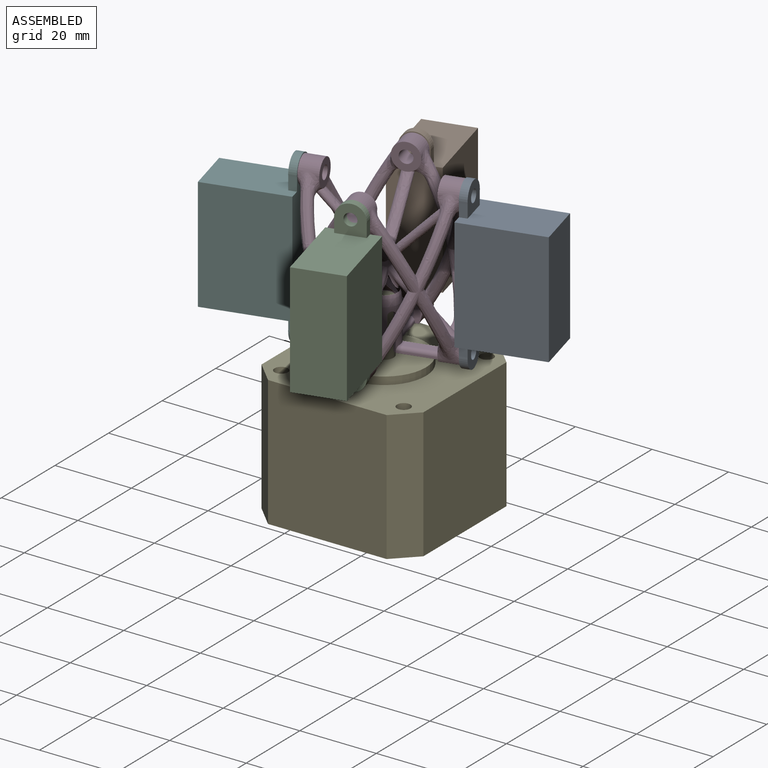
[diagram: assembled view]
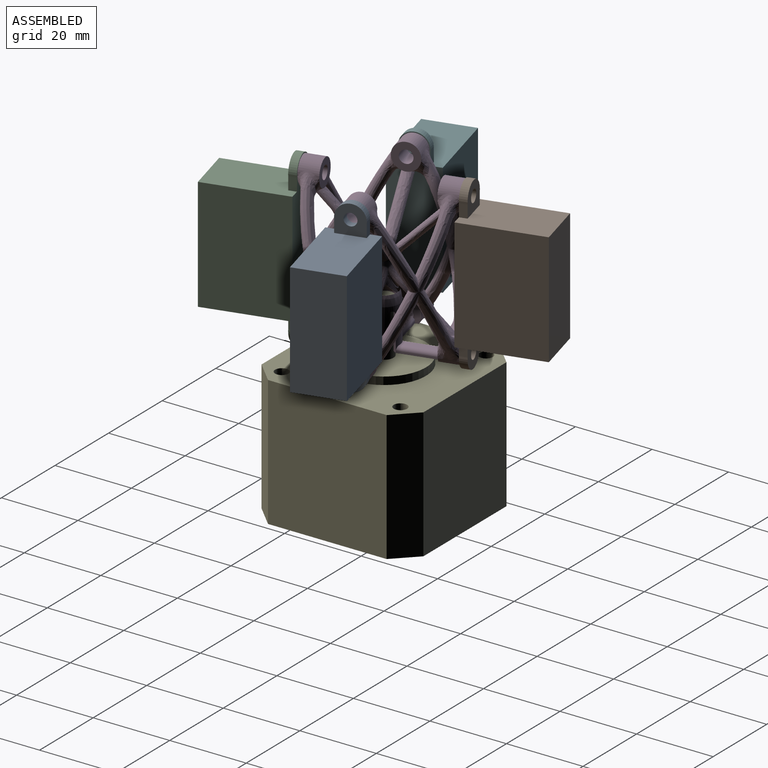
[diagram: assembled view, second angle]
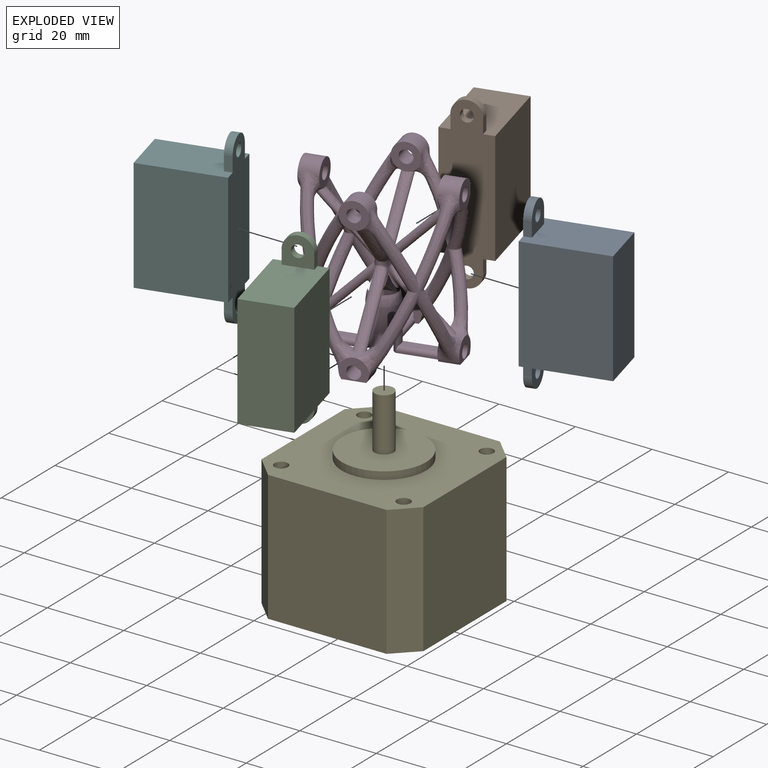
[diagram: exploded view]
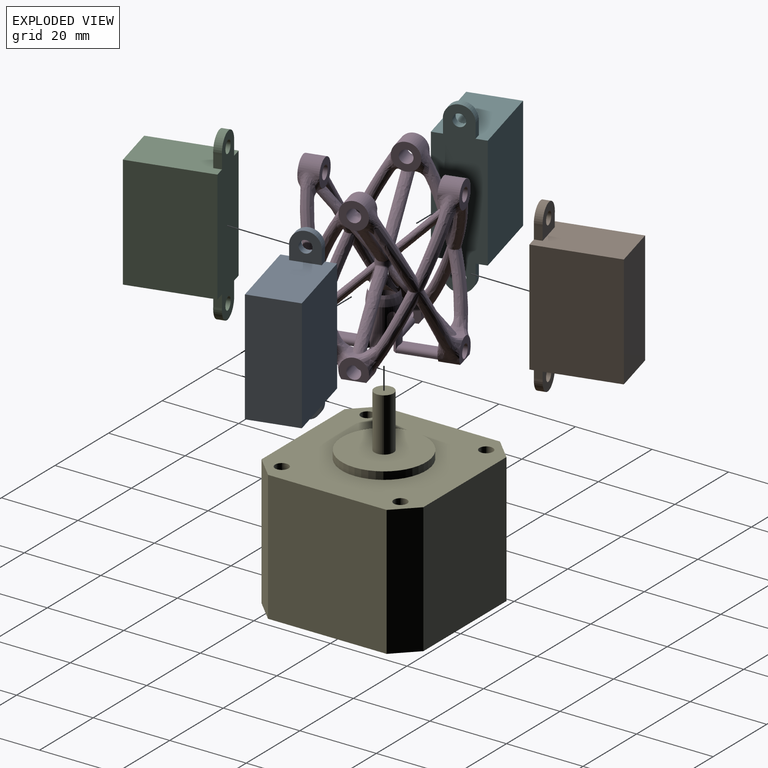
[diagram: exploded view, second angle]
ASSEMBLY  parts=6 mates=5
PART A: 16 faces, bbox 44.5x21.6x13 mm
  f0: plane 21.6x13mm, normal (1,0,0), area 265.9mm2, adj f2,f3,f4,f5,f12,f14,f15
  f1: plane 21.6x13mm, normal (-1,0,0), area 265.9mm2, adj f2,f3,f4,f5,f8,f9,f10
  f2: plane 29.5x21.6mm, normal (0,0,-1), area 637.2mm2, adj f0,f1,f4,f5
  f3: plane 29.5x21.6mm, normal (0,0,1), area 637.2mm2, adj f0,f1,f4,f5
  f4: plane 29.5x13mm, normal (0,-1,0), area 383.5mm2, adj f0,f1,f2,f3
  f5: plane 44.5x13mm, normal (0,1,0), area 467.5mm2, adj f0,f1,f2,f3,f6,f7,f9,f10
  f6: cylinder r=3.75mm len=7.5mm, axis (0,1,0), area 25.4mm2, adj f5,f8,f9,f10
  f7: cylinder r=1.6mm len=3.2mm, axis (0,1,0), area 20.1mm2, adj f5,f8
  f8: plane 7.5x7.5mm, normal (0,-1,0), area 42mm2, adj f1,f6,f7,f9,f10
  f9: plane 3.3x2mm, normal (0,0,-1), area 6.6mm2, adj f1,f5,f6,f8
  f10: plane 3.3x2mm, normal (0,0,1), area 6.6mm2, adj f1,f5,f6,f8
  f11: cylinder r=3.75mm len=7.5mm, axis (0,1,0), area 25.4mm2, adj f5,f12,f14,f15
  f12: plane 3.3x2mm, normal (0,0,1), area 6.6mm2, adj f0,f5,f11,f15
  f13: cylinder r=1.6mm len=3.2mm, axis (0,1,0), area 20.1mm2, adj f5,f15
  f14: plane 3.3x2mm, normal (0,0,-1), area 6.6mm2, adj f0,f5,f11,f15
  f15: plane 7.5x7.5mm, normal (0,-1,0), area 42mm2, adj f0,f11,f12,f13,f14
PART B: same geometry as A
PART C: same geometry as A
PART D: 319 faces, bbox 91.7x91.7x44.1 mm
  f0: cylinder r=4mm len=11.18mm, axis (0,0,-1), area 178.8mm2, adj f1,f4,f284,f285,f286,f287,f288,f289
  f1: plane 9x1.15mm, normal (0,-1,0), area 10.4mm2, adj f0,f2,f288,f317
  f2: cylinder r=2.9mm len=12.1mm, axis (0,0,-1), area 142.9mm2, adj f1,f3,f288,f289,f290,f291,f297,f298
  f3: cone r=2.9mm half-angle=45deg, axis (0,0,-1), area 37.4mm2, adj f2
  f4: plane 7.1x7.1mm, normal (-0.71,-0.71,0), area 5mm2, adj f0,f5,f284,f288
  f5: plane 6.32x5.77mm, normal (0.71,-0.71,0), area 20.6mm2, adj f4,f6,f273,f274,f275,f276,f277,f278
  f6: cylinder r=3.5mm len=3.94mm, axis (-0.71,0.71,0), area 5mm2, adj f5,f7,f272,f288
  f7: plane 6.1x5.55mm, normal (-0.71,0.71,0), area 23.4mm2, adj f6,f8,f266,f267,f268,f269,f270,f271
  f8: bspline ~4.59x2.49mm, area 5.4mm2, adj f7,f9,f10,f266
  f9: bspline ~4.05x4.01mm, area 6.8mm2, adj f8,f10,f280,f281
  f10: bspline ~26.59x15.83mm, area 50.2mm2, adj f8,f9,f11,f264,f265,f280
  f11: bspline ~22.61x13.64mm, area 50.2mm2, adj f10,f12,f260,f261,f262,f263
  f12: bspline ~16.12x8.88mm, area 29.7mm2, adj f11,f13,f259,f265
  f13: bspline ~14.07x8.53mm, area 37.1mm2, adj f12,f14,f256,f257,f258,f263
  f14: bspline ~15.18x9.13mm, area 41.2mm2, adj f13,f15,f252,f253,f254,f255
  f15: bspline ~16.95x9.29mm, area 31.6mm2, adj f14,f16,f250,f251
  f16: bspline ~16.95x9.29mm, area 31.6mm2, adj f15,f17,f248,f249
  f17: bspline ~15.18x9.13mm, area 41.2mm2, adj f16,f18,f244,f245,f246,f247
  f18: bspline ~14.07x8.53mm, area 37.1mm2, adj f17,f19,f264,f265,f267,f278
  f19: bspline ~6.07x5.61mm, area 12mm2, adj f18,f20,f243,f267,f268,f278
  f20: bspline ~6.12x5.75mm, area 12.1mm2, adj f19,f21,f243,f268,f269,f275
  f21: bspline ~14.07x8.53mm, area 37.1mm2, adj f20,f22,f241,f242,f269,f275
  f22: bspline ~15.18x9.13mm, area 41.2mm2, adj f21,f23,f237,f238,f239,f240
  f23: bspline ~16.95x9.29mm, area 31.6mm2, adj f22,f24,f235,f236
  f24: bspline ~16.95x9.29mm, area 31.6mm2, adj f23,f25,f233,f234
  f25: bspline ~15.18x9.13mm, area 41.2mm2, adj f24,f26,f229,f230,f231,f232
  f26: bspline ~14.07x8.53mm, area 37.1mm2, adj f25,f27,f225,f226,f227,f228
  f27: bspline ~16.12x8.88mm, area 29.7mm2, adj f26,f28,f224,f242
  f28: bspline ~26.59x15.83mm, area 50.2mm2, adj f27,f29,f30,f222,f223,f228
  f29: bspline ~26.59x15.83mm, area 50.2mm2, adj f28,f241,f242,f271,f272,f273
  f30: bspline ~4.59x2.49mm, area 5.4mm2, adj f28,f31,f221,f222
  f31: plane 6.1x5.55mm, normal (-0.71,-0.71,0), area 23.4mm2, adj f30,f32,f215,f216,f217,f218,f219,f220
  f32: cylinder r=1.7mm len=5.94mm, axis (0.71,0.71,0), area 53.2mm2, adj f31,f33,f214,f311,f313
  f33: plane 6.32x5.77mm, normal (0.71,0.71,0), area 20.6mm2, adj f32,f34,f210,f211,f212,f213,f215,f220
  f34: bspline ~3.51x2.3mm, area 2.3mm2, adj f33,f35,f36,f210
  f35: bspline ~4.58x4.51mm, area 6.8mm2, adj f34,f36,f219,f220
  f36: bspline ~26.59x15.83mm, area 50.2mm2, adj f34,f35,f37,f208,f209,f219
  f37: bspline ~26.59x15.83mm, area 50.2mm2, adj f36,f38,f204,f205,f206,f207
  f38: bspline ~22.59x13.45mm, area 32.9mm2, adj f37,f39,f202,f203
  f39: bspline ~25.82x15.2mm, area 34.5mm2, adj f38,f40,f200,f201
  f40: bspline ~26.59x15.83mm, area 50.7mm2, adj f39,f41,f196,f197,f198,f199
  f41: bspline ~22.61x13.64mm, area 50.7mm2, adj f40,f42,f192,f193,f194,f195
  f42: bspline ~25.82x15.2mm, area 34.5mm2, adj f41,f43,f191,f209
  f43: bspline ~15.18x9.13mm, area 41.2mm2, adj f42,f44,f47,f189,f190,f195
  f44: bspline ~14.07x8.53mm, area 37.1mm2, adj f43,f45,f208,f209,f211,f217
  f45: bspline ~6.12x5.75mm, area 12.1mm2, adj f44,f46,f211,f216,f217,f226
  f46: bspline ~17.84x12.63mm, area 141mm2, adj f45,f211,f212,f213,f225,f226
  f47: bspline ~3.33x2.98mm, area 3.2mm2, adj f43,f48,f49,f189
  f48: bspline ~4.97x3.13mm, area 6.7mm2, adj f47,f49,f194,f195
  f49: plane 7.43x5.38mm, normal (0.71,0.71,0), area 29.4mm2, adj f47,f48,f50,f185,f186,f187,f188,f194
  f50: cylinder r=3.5mm len=8.48mm, axis (-0.71,-0.71,0), area 46.2mm2, adj f49,f51,f54,f193
  f51: bspline ~4.19x4.18mm, area 6.4mm2, adj f50,f52,f185,f234
  f52: bspline ~3.44x2.04mm, area 3.7mm2, adj f51,f53,f54,f234
  f53: bspline ~3.43x3.32mm, area 5.3mm2, adj f52,f54,f229,f230
  f54: plane 7.38x5.33mm, normal (-0.71,-0.71,0), area 29.4mm2, adj f50,f52,f53,f55,f188,f190,f191,f192
  f55: cylinder r=3.5mm len=2.9mm, axis (-0.71,-0.71,0), area 3.2mm2, adj f54,f56,f189,f231
  f56: bspline ~18.06x12.78mm, area 154.2mm2, adj f55,f57,f165,f166,f167,f168,f184,f186
  f57: bspline ~18.06x12.78mm, area 154.2mm2, adj f56,f58,f158,f159,f160,f161,f162,f163
  f58: bspline ~18.06x12.78mm, area 154.2mm2, adj f57,f59,f151,f152,f153,f154,f157,f158
  f59: cylinder r=3.5mm len=0.79mm, axis (0.71,0.71,0), area 0.1mm2, adj f58,f60,f151
  f60: plane 7.43x5.38mm, normal (-0.71,-0.71,0), area 29.4mm2, adj f59,f61,f146,f147,f148,f149,f150,f157
  f61: bspline ~2.41x1.99mm, area 0.4mm2, adj f60,f62,f250,f251
  f62: bspline ~4.14x4.13mm, area 6.4mm2, adj f61,f63,f146,f250
  f63: bspline ~3.44x2.04mm, area 3.7mm2, adj f62,f64,f145,f250
  f64: plane 7.38x5.33mm, normal (0.71,0.71,0), area 29.4mm2, adj f63,f65,f143,f144,f145,f146,f150,f152
  f65: bspline ~3.3x1.99mm, area 0.1mm2, adj f64,f66,f143,f151
  f66: bspline ~15.18x9.13mm, area 41.2mm2, adj f65,f67,f141,f142,f149,f151
  f67: bspline ~14.07x8.53mm, area 37.1mm2, adj f66,f68,f137,f138,f139,f140
  f68: bspline ~16.12x8.88mm, area 29.7mm2, adj f67,f69,f135,f136
  f69: bspline ~16.12x8.88mm, area 29.7mm2, adj f68,f70,f133,f134
  f70: bspline ~14.07x8.53mm, area 37.1mm2, adj f69,f71,f91,f130,f131,f132
  f71: bspline ~15.18x9.13mm, area 41.2mm2, adj f70,f72,f88,f89,f90,f160
  f72: bspline ~16.95x9.29mm, area 31.6mm2, adj f71,f73,f87,f142
  f73: bspline ~22.61x13.64mm, area 50.7mm2, adj f72,f74,f76,f85,f86,f90
  f74: bspline ~26.59x15.83mm, area 50.7mm2, adj f73,f75,f141,f142,f144,f147
  f75: bspline ~4.19x4.18mm, area 6.4mm2, adj f74,f144,f146,f147
  f76: bspline ~3.44x2.04mm, area 3.7mm2, adj f73,f77,f84,f85
  f77: plane 7.38x5.33mm, normal (0.71,-0.71,0), area 29.4mm2, adj f76,f78,f79,f83,f84,f89,f164,f199
  f78: bspline ~3.3x1.99mm, area 0.1mm2, adj f77,f163,f200,f201
  f79: cylinder r=3.5mm len=8.48mm, axis (0.71,-0.71,0), area 46.2mm2, adj f77,f80,f85,f198
  f80: plane 7.43x5.38mm, normal (-0.71,0.71,0), area 29.4mm2, adj f79,f81,f82,f83,f86,f87,f88,f161
  f81: bspline ~4.94x3.13mm, area 6.7mm2, adj f80,f82,f196,f197
  f82: bspline ~3.35x2.94mm, area 3.2mm2, adj f80,f81,f163,f201
  f83: cylinder r=1.7mm len=5.94mm, axis (0.71,-0.71,0), area 53.4mm2, adj f77,f80
  f84: bspline ~3.37x3.2mm, area 5.3mm2, adj f76,f77,f89,f90
  f85: bspline ~4.14x4.13mm, area 6.4mm2, adj f73,f76,f79,f86
  f86: bspline ~2.41x1.99mm, area 0.4mm2, adj f73,f80,f85,f87
  f87: bspline ~4.97x3.13mm, area 6.7mm2, adj f72,f80,f86,f88
  f88: bspline ~3.33x2.98mm, area 3.2mm2, adj f71,f80,f87,f160
  f89: bspline ~3.42x2.07mm, area 0.1mm2, adj f71,f77,f84,f160
  f90: bspline ~25.82x15.2mm, area 34.5mm2, adj f71,f73,f84,f91
  f91: bspline ~18.51x11.11mm, area 32.9mm2, adj f70,f90,f92,f134
  f92: bspline ~4.53x4.4mm, area 8mm2, adj f91,f93,f129,f130
  f93: bspline ~4.51x2.35mm, area 5.4mm2, adj f92,f94,f129,f134
  f94: bspline ~4.58x4.51mm, area 6.8mm2, adj f93,f95,f128,f134
  f95: cylinder r=3.5mm len=3.94mm, axis (0.71,-0.71,0), area 5mm2, adj f94,f96,f129,f306
  f96: plane 6.32x5.77mm, normal (-0.71,0.71,0), area 20.6mm2, adj f95,f97,f122,f123,f124,f125,f126,f128
  f97: cylinder r=3.5mm len=0.06mm, axis (0.71,-0.71,0), area 0mm2, adj f96,f98
  f98: bspline ~17.84x12.63mm, area 141mm2, adj f97,f99,f102,f122,f123,f131,f132
  f99: bspline ~6.07x5.61mm, area 12mm2, adj f98,f100,f101,f123,f131,f202
  f100: bspline ~4.58x2.74mm, area 0.7mm2, adj f99,f129,f202,f203
  f101: cylinder r=3.5mm len=1.46mm, axis (0.71,-0.71,0), area 0.4mm2, adj f99,f129,f131
  f102: bspline ~5.73x3.29mm, area 10.9mm2, adj f98,f103,f105,f106,f166
  f103: bspline ~5.73x3.29mm, area 9.3mm2, adj f102,f104,f105
  f104: bspline ~5.67x3.29mm, area 9.5mm2, adj f103,f105,f106,f166,f243
  f105: torus R=22mm, axis (0,0,-1), area 2542.3mm2, adj f102,f103,f104,f106,f318
  f106: bspline ~5.73x3.29mm, area 9.4mm2, adj f102,f104,f105,f107,f166
  f107: bspline ~17.84x12.63mm, area 141mm2, adj f106,f108,f121,f137,f138,f257,f258
  f108: cylinder r=3.5mm len=0.06mm, axis (0.71,0.71,0), area 0mm2, adj f107,f109
  f109: plane 6.32x5.77mm, normal (-0.71,-0.71,0), area 20.6mm2, adj f108,f110,f117,f118,f119,f121,f136,f137
  f110: cylinder r=3.5mm len=3.94mm, axis (0.71,0.71,0), area 5mm2, adj f109,f111,f261,f297
  f111: plane 6.1x5.55mm, normal (0.71,0.71,0), area 23.4mm2, adj f110,f112,f114,f115,f116,f118,f119,f139
  f112: bspline ~4.59x2.49mm, area 5.4mm2, adj f111,f113,f114,f135
  f113: bspline ~4.05x4.01mm, area 6.8mm2, adj f112,f117,f118,f135
  f114: bspline ~4.53x4.4mm, area 8mm2, adj f111,f112,f139,f140
  f115: cylinder r=3.5mm len=1.46mm, axis (0.71,0.71,0), area 0.4mm2, adj f111,f138,f257
  f116: bspline ~4.53x4.4mm, area 8mm2, adj f111,f256,f262,f263
  f117: bspline ~3.39x2.31mm, area 2.3mm2, adj f109,f113,f135,f136
  f118: cylinder r=3.5mm len=3.94mm, axis (0.71,0.71,0), area 5mm2, adj f109,f111,f113,f297
  f119: cylinder r=1.7mm len=5.94mm, axis (0.71,0.71,0), area 53.2mm2, adj f109,f111,f120,f293,f295
  f120: plane 2.21x2.21mm, normal (0.71,0.71,0), area 2.8mm2, adj f119,f293,f294,f295
  f121: cylinder r=3.5mm len=0.06mm, axis (0.71,0.71,0), area 0mm2, adj f107,f109
  f122: cylinder r=3.5mm len=0.06mm, axis (0.71,-0.71,0), area 0mm2, adj f96,f98
  f123: bspline ~4.19x3.64mm, area 4.7mm2, adj f96,f98,f99,f124,f202
  f124: bspline ~6x3.76mm, area 9.2mm2, adj f96,f123,f206,f207
  f125: cylinder r=3.5mm len=3.94mm, axis (0.71,-0.71,0), area 5mm2, adj f96,f129,f205,f306
  f126: cylinder r=1.7mm len=5.94mm, axis (0.71,-0.71,0), area 53.2mm2, adj f96,f127,f129,f302,f304
  f127: plane 2.21x2.21mm, normal (0.71,-0.71,0), area 2.8mm2, adj f126,f302,f303,f304
  f128: bspline ~3.51x2.3mm, area 2.3mm2, adj f94,f96,f133,f134
  f129: plane 6.1x5.55mm, normal (0.71,-0.71,0), area 23.4mm2, adj f92,f93,f95,f100,f101,f125,f126,f130
  f130: bspline ~4.58x2.74mm, area 0.7mm2, adj f70,f92,f129,f131
  f131: bspline ~6.12x5.75mm, area 12.1mm2, adj f70,f98,f99,f101,f130,f132
  f132: bspline ~4.19x3.64mm, area 4.7mm2, adj f70,f96,f98,f131,f133
  f133: bspline ~5.78x3.52mm, area 9.2mm2, adj f69,f96,f128,f132
  f134: bspline ~22.61x13.64mm, area 50.2mm2, adj f69,f91,f93,f94,f128,f135
  f135: bspline ~26.59x15.83mm, area 50.2mm2, adj f68,f112,f113,f117,f134,f140
  f136: bspline ~6x3.76mm, area 9.2mm2, adj f68,f109,f117,f137
  f137: bspline ~4.19x3.64mm, area 4.7mm2, adj f67,f107,f109,f136,f138
  f138: bspline ~6.07x5.61mm, area 12mm2, adj f67,f107,f115,f137,f139,f257
  f139: bspline ~4.58x2.74mm, area 0.7mm2, adj f67,f111,f114,f138
  f140: bspline ~22.59x13.45mm, area 32.9mm2, adj f67,f114,f135,f141
  f141: bspline ~25.82x15.2mm, area 34.5mm2, adj f66,f74,f140,f143
  f142: bspline ~16.95x9.29mm, area 31.6mm2, adj f66,f72,f74,f148
  f143: bspline ~3.43x3.32mm, area 5.3mm2, adj f64,f65,f141,f144
  f144: bspline ~3.44x2.04mm, area 3.7mm2, adj f64,f74,f75,f143
  f145: bspline ~3.37x3.2mm, area 5.3mm2, adj f63,f64,f254,f255
  f146: cylinder r=3.5mm len=8.48mm, axis (0.71,0.71,0), area 46.2mm2, adj f60,f62,f64,f75
  f147: bspline ~2.44x1.99mm, area 0.4mm2, adj f60,f74,f75,f148
  f148: bspline ~4.94x3.13mm, area 6.7mm2, adj f60,f142,f147,f149
  f149: bspline ~3.35x2.94mm, area 3.2mm2, adj f60,f66,f148,f151
  f150: cylinder r=1.7mm len=5.94mm, axis (0.71,0.71,0), area 53.4mm2, adj f60,f64
  f151: bspline ~4.85x4.66mm, area 10mm2, adj f58,f59,f65,f66,f149,f152
  f152: cylinder r=3.5mm len=2.9mm, axis (0.71,0.71,0), area 3.2mm2, adj f58,f64,f151,f253
  f153: cylinder r=2mm len=0.13mm, axis (0,0,-1), area 0mm2, adj f58,f166,f168
  f154: bspline ~2.55x2.55mm, area 2.4mm2, adj f58,f155,f156,f159
  f155: bspline ~2.55x2.55mm, area 2.4mm2, adj f154,f156,f168,f184
  f156: sphere r=2mm, area 1.8mm2, adj f154,f155,f159,f184
  f157: cylinder r=3.5mm len=0.79mm, axis (0.71,0.71,0), area 0.1mm2, adj f58,f60,f253
  f158: cylinder r=2mm len=0.13mm, axis (0,0,-1), area 0mm2, adj f57,f58,f166
  f159: bspline ~2.55x2.55mm, area 2.4mm2, adj f57,f154,f156,f184
  f160: bspline ~4.98x4.77mm, area 10mm2, adj f57,f71,f88,f89,f161,f164
  f161: cylinder r=3.5mm len=0.79mm, axis (0.71,-0.71,0), area 0.1mm2, adj f57,f80,f160
  f162: cylinder r=3.5mm len=0.79mm, axis (0.71,-0.71,0), area 0.1mm2, adj f57,f80,f163
  f163: bspline ~4.85x4.66mm, area 10mm2, adj f57,f78,f82,f162,f164,f201
  f164: cylinder r=3.5mm len=2.9mm, axis (0.71,-0.71,0), area 3.2mm2, adj f57,f77,f160,f163
  f165: cylinder r=2mm len=0.13mm, axis (0,0,-1), area 0mm2, adj f56,f57,f166
  f166: torus R=22mm, axis (0,0,-1), area 14mm2, adj f56,f57,f58,f102,f104,f106,f153,f158
  f167: cylinder r=2mm len=0.13mm, axis (0,0,-1), area 0mm2, adj f56,f166,f168
  f168: bspline ~18.06x12.78mm, area 154.2mm2, adj f56,f58,f153,f155,f166,f167,f169,f182
  f169: cylinder r=3.5mm len=0.79mm, axis (-0.71,0.71,0), area 0.1mm2, adj f168,f170,f246
  f170: plane 7.43x5.38mm, normal (0.71,-0.71,0), area 29.4mm2, adj f169,f171,f179,f180,f181,f183,f236,f237
  f171: bspline ~2.41x1.99mm, area 0.4mm2, adj f170,f172,f235,f236
  f172: bspline ~4.14x4.13mm, area 6.4mm2, adj f171,f173,f179,f235
  f173: bspline ~3.44x2.04mm, area 3.7mm2, adj f172,f174,f178,f235
  f174: plane 7.38x5.33mm, normal (-0.71,0.71,0), area 29.4mm2, adj f173,f175,f176,f178,f179,f181,f182,f239
  f175: bspline ~3.43x3.32mm, area 5.3mm2, adj f174,f176,f244,f245
  f176: bspline ~3.44x2.04mm, area 3.7mm2, adj f174,f175,f177,f249
  f177: bspline ~4.19x4.18mm, area 6.4mm2, adj f176,f179,f180,f249
  f178: bspline ~3.37x3.2mm, area 5.3mm2, adj f173,f174,f239,f240
  f179: cylinder r=3.5mm len=8.48mm, axis (-0.71,0.71,0), area 46.2mm2, adj f170,f172,f174,f177
  f180: bspline ~2.44x1.99mm, area 0.4mm2, adj f170,f177,f248,f249
  f181: cylinder r=1.7mm len=5.94mm, axis (0.71,-0.71,0), area 53.4mm2, adj f170,f174
  f182: cylinder r=3.5mm len=2.9mm, axis (-0.71,0.71,0), area 3.2mm2, adj f168,f174,f238,f246
  f183: cylinder r=3.5mm len=0.79mm, axis (-0.71,0.71,0), area 0.1mm2, adj f168,f170,f238
  f184: bspline ~2.55x2.55mm, area 2.4mm2, adj f56,f155,f156,f159
  f185: bspline ~2.44x1.99mm, area 0.4mm2, adj f49,f51,f233,f234
  f186: cylinder r=3.5mm len=0.79mm, axis (-0.71,-0.71,0), area 0.1mm2, adj f49,f56,f231
  f187: cylinder r=3.5mm len=0.79mm, axis (-0.71,-0.71,0), area 0.1mm2, adj f49,f56,f189
  f188: cylinder r=1.7mm len=5.94mm, axis (0.71,0.71,0), area 53.4mm2, adj f49,f54
  f189: bspline ~4.98x4.77mm, area 10mm2, adj f43,f47,f55,f56,f187,f190
  f190: bspline ~3.42x2.07mm, area 0.1mm2, adj f43,f54,f189,f191
  f191: bspline ~3.37x3.2mm, area 5.3mm2, adj f42,f54,f190,f192
  f192: bspline ~3.44x2.04mm, area 3.7mm2, adj f41,f54,f191,f193
  f193: bspline ~4.14x4.13mm, area 6.4mm2, adj f41,f50,f192,f194
  f194: bspline ~2.41x1.99mm, area 0.4mm2, adj f41,f48,f49,f193
  f195: bspline ~16.95x9.29mm, area 31.6mm2, adj f41,f43,f48,f196
  f196: bspline ~16.95x9.29mm, area 31.6mm2, adj f40,f81,f195,f201
  f197: bspline ~2.44x1.99mm, area 0.4mm2, adj f40,f80,f81,f198
  f198: bspline ~4.19x4.18mm, area 6.4mm2, adj f40,f79,f197,f199
  f199: bspline ~3.44x2.04mm, area 3.7mm2, adj f40,f77,f198,f200
  f200: bspline ~3.43x3.32mm, area 5.3mm2, adj f39,f77,f78,f199
  f201: bspline ~15.18x9.13mm, area 41.2mm2, adj f39,f78,f82,f163,f196,f202
  f202: bspline ~14.07x8.53mm, area 37.1mm2, adj f38,f99,f100,f123,f201,f207
  f203: bspline ~4.53x4.4mm, area 8mm2, adj f38,f100,f129,f204
  f204: bspline ~4.59x2.49mm, area 5.4mm2, adj f37,f129,f203,f205
  f205: bspline ~4.05x4.01mm, area 6.8mm2, adj f37,f125,f204,f206
  f206: bspline ~3.39x2.31mm, area 2.3mm2, adj f37,f96,f124,f205
  f207: bspline ~16.12x8.88mm, area 29.7mm2, adj f37,f124,f202,f208
  f208: bspline ~16.12x8.88mm, area 29.7mm2, adj f36,f44,f207,f210
  f209: bspline ~22.59x13.45mm, area 32.9mm2, adj f36,f42,f44,f218
  f210: bspline ~5.78x3.52mm, area 9.2mm2, adj f33,f34,f208,f211
  f211: bspline ~4.19x3.64mm, area 4.7mm2, adj f33,f44,f45,f46,f210
  f212: cylinder r=3.5mm len=0.06mm, axis (-0.71,-0.71,0), area 0mm2, adj f33,f46
  f213: cylinder r=3.5mm len=0.06mm, axis (-0.71,-0.71,0), area 0mm2, adj f33,f46
  f214: plane 2.21x2.21mm, normal (-0.71,-0.71,0), area 2.8mm2, adj f32,f311,f312,f313
  f215: cylinder r=3.5mm len=3.94mm, axis (-0.71,-0.71,0), area 5mm2, adj f31,f33,f222,f315
  f216: cylinder r=3.5mm len=1.46mm, axis (-0.71,-0.71,0), area 0.4mm2, adj f31,f45,f226
  f217: bspline ~4.58x2.74mm, area 0.7mm2, adj f31,f44,f45,f218
  f218: bspline ~4.53x4.4mm, area 8mm2, adj f31,f209,f217,f219
  f219: bspline ~4.51x2.35mm, area 5.4mm2, adj f31,f35,f36,f218
  f220: cylinder r=3.5mm len=3.94mm, axis (-0.71,-0.71,0), area 5mm2, adj f31,f33,f35,f315
  f221: bspline ~4.53x4.4mm, area 8mm2, adj f30,f31,f227,f228
  f222: bspline ~4.05x4.01mm, area 6.8mm2, adj f28,f30,f215,f223
  f223: bspline ~3.39x2.31mm, area 2.3mm2, adj f28,f33,f222,f224
  f224: bspline ~6x3.76mm, area 9.2mm2, adj f27,f33,f223,f225
  f225: bspline ~4.19x3.64mm, area 4.7mm2, adj f26,f33,f46,f224,f226
  f226: bspline ~6.07x5.61mm, area 12mm2, adj f26,f45,f46,f216,f225,f227
  f227: bspline ~4.58x2.74mm, area 0.7mm2, adj f26,f31,f221,f226
  f228: bspline ~22.59x13.45mm, area 32.9mm2, adj f26,f28,f221,f229
  f229: bspline ~25.82x15.2mm, area 34.5mm2, adj f25,f53,f228,f234
  f230: bspline ~3.3x1.99mm, area 0.1mm2, adj f25,f53,f54,f231
  f231: bspline ~4.85x4.66mm, area 10mm2, adj f25,f55,f56,f186,f230,f232
  f232: bspline ~3.35x2.94mm, area 3.2mm2, adj f25,f49,f231,f233
  f233: bspline ~4.94x3.13mm, area 6.7mm2, adj f24,f49,f185,f232
  f234: bspline ~26.59x15.83mm, area 50.7mm2, adj f24,f51,f52,f185,f229,f235
  f235: bspline ~22.61x13.64mm, area 50.7mm2, adj f23,f171,f172,f173,f234,f240
  f236: bspline ~4.97x3.13mm, area 6.7mm2, adj f23,f170,f171,f237
  f237: bspline ~3.33x2.98mm, area 3.2mm2, adj f22,f170,f236,f238
  f238: bspline ~4.98x4.77mm, area 10mm2, adj f22,f168,f182,f183,f237,f239
  f239: bspline ~3.42x2.07mm, area 0.1mm2, adj f22,f174,f178,f238
  f240: bspline ~25.82x15.2mm, area 34.5mm2, adj f22,f178,f235,f241
  f241: bspline ~22.59x13.45mm, area 32.9mm2, adj f21,f29,f240,f270
  f242: bspline ~16.12x8.88mm, area 29.7mm2, adj f21,f27,f29,f274
  f243: bspline ~17.84x12.63mm, area 141mm2, adj f19,f20,f104,f275,f276,f277,f278
  f244: bspline ~25.82x15.2mm, area 34.5mm2, adj f17,f175,f249,f264
  f245: bspline ~3.3x1.99mm, area 0.1mm2, adj f17,f174,f175,f246
  f246: bspline ~4.85x4.66mm, area 10mm2, adj f17,f168,f169,f182,f245,f247
  f247: bspline ~3.35x2.94mm, area 3.2mm2, adj f17,f170,f246,f248
  f248: bspline ~4.94x3.13mm, area 6.7mm2, adj f16,f170,f180,f247
  f249: bspline ~26.59x15.83mm, area 50.7mm2, adj f16,f176,f177,f180,f244,f250
  f250: bspline ~22.61x13.64mm, area 50.7mm2, adj f15,f61,f62,f63,f249,f255
  f251: bspline ~4.97x3.13mm, area 6.7mm2, adj f15,f60,f61,f252
  f252: bspline ~3.33x2.98mm, area 3.2mm2, adj f14,f60,f251,f253
  f253: bspline ~4.98x4.77mm, area 10mm2, adj f14,f58,f152,f157,f252,f254
  f254: bspline ~3.42x2.07mm, area 0.1mm2, adj f14,f64,f145,f253
  f255: bspline ~25.82x15.2mm, area 34.5mm2, adj f14,f145,f250,f263
  f256: bspline ~4.58x2.74mm, area 0.7mm2, adj f13,f111,f116,f257
  f257: bspline ~6.12x5.75mm, area 12.1mm2, adj f13,f107,f115,f138,f256,f258
  f258: bspline ~4.19x3.64mm, area 4.7mm2, adj f13,f107,f109,f257,f259
  f259: bspline ~5.78x3.52mm, area 9.2mm2, adj f12,f109,f258,f260
  f260: bspline ~3.51x2.3mm, area 2.3mm2, adj f11,f109,f259,f261
  f261: bspline ~4.58x4.51mm, area 6.8mm2, adj f11,f110,f260,f262
  f262: bspline ~4.51x2.35mm, area 5.4mm2, adj f11,f111,f116,f261
  f263: bspline ~18.51x11.11mm, area 32.9mm2, adj f11,f13,f116,f255
  f264: bspline ~22.59x13.45mm, area 32.9mm2, adj f10,f18,f244,f266
  f265: bspline ~16.12x8.88mm, area 29.7mm2, adj f10,f12,f18,f279
  f266: bspline ~4.53x4.4mm, area 8mm2, adj f7,f8,f264,f267
  f267: bspline ~4.58x2.74mm, area 0.7mm2, adj f7,f18,f19,f266
  f268: cylinder r=3.5mm len=1.46mm, axis (-0.71,0.71,0), area 0.4mm2, adj f7,f19,f20
  f269: bspline ~4.58x2.74mm, area 0.7mm2, adj f7,f20,f21,f270
  f270: bspline ~4.53x4.4mm, area 8mm2, adj f7,f241,f269,f271
  f271: bspline ~4.51x2.35mm, area 5.4mm2, adj f7,f29,f270,f272
  f272: bspline ~4.58x4.51mm, area 6.8mm2, adj f6,f29,f271,f273
  f273: bspline ~3.51x2.3mm, area 2.3mm2, adj f5,f29,f272,f274
  f274: bspline ~5.78x3.52mm, area 9.2mm2, adj f5,f242,f273,f275
  f275: bspline ~4.19x3.64mm, area 4.7mm2, adj f5,f20,f21,f243,f274
  f276: cylinder r=3.5mm len=0.06mm, axis (-0.71,0.71,0), area 0mm2, adj f5,f243
  f277: cylinder r=3.5mm len=0.06mm, axis (-0.71,0.71,0), area 0mm2, adj f5,f243
  f278: bspline ~4.19x3.64mm, area 4.7mm2, adj f5,f18,f19,f243,f279
  f279: bspline ~6x3.76mm, area 9.2mm2, adj f5,f265,f278,f280
  f280: bspline ~3.39x2.31mm, area 2.3mm2, adj f5,f9,f10,f279
  f281: cylinder r=3.5mm len=3.94mm, axis (-0.71,0.71,0), area 5mm2, adj f5,f7,f9,f288
  f282: cylinder r=1.7mm len=5.94mm, axis (0.71,-0.71,0), area 53.2mm2, adj f5,f7,f283,f284,f286
  f283: plane 2.21x2.21mm, normal (-0.71,0.71,0), area 2.8mm2, adj f282,f284,f285,f286
  f284: cylinder r=1mm len=7.84mm, axis (-0.71,0.71,0), area 15.5mm2, adj f0,f4,f5,f282,f283,f285
  f285: plane 8.26x8.26mm, normal (0,0,1), area 19.2mm2, adj f0,f283,f284,f286
  f286: cylinder r=1mm len=7.84mm, axis (0.71,-0.71,0), area 15.5mm2, adj f0,f5,f282,f283,f285,f287
  f287: plane 7.1x7.1mm, normal (0.71,0.71,0), area 5mm2, adj f0,f5,f286,f288
  f288: plane 14.11x14.11mm, normal (0,0,-1), area 71.1mm2, adj f0,f1,f2,f4,f5,f6,f7,f281
  f289: plane 9x1.15mm, normal (1,0,0), area 10.4mm2, adj f0,f2,f288,f290
  f290: cylinder r=1mm len=2mm, axis (0,1,0), area 3.5mm2, adj f0,f2,f289,f291
  f291: plane 9x1.15mm, normal (-1,0,0), area 10.4mm2, adj f0,f2,f290,f297
  f292: plane 7.1x7.1mm, normal (-0.71,0.71,0), area 5mm2, adj f0,f109,f293,f297
  f293: cylinder r=1mm len=7.84mm, axis (0.71,0.71,0), area 15.5mm2, adj f0,f109,f119,f120,f292,f294
  f294: plane 8.26x8.26mm, normal (0,0,1), area 19.2mm2, adj f0,f120,f293,f295
  f295: cylinder r=1mm len=7.84mm, axis (-0.71,-0.71,0), area 15.5mm2, adj f0,f109,f119,f120,f294,f296
  f296: plane 7.1x7.1mm, normal (0.71,-0.71,0), area 5mm2, adj f0,f109,f295,f297
  f297: plane 14.11x14.11mm, normal (0,0,-1), area 71.1mm2, adj f0,f2,f109,f110,f111,f118,f291,f292
  f298: plane 9x1.15mm, normal (0,-1,0), area 10.4mm2, adj f0,f2,f297,f299
  f299: cylinder r=1mm len=2mm, axis (-1,0,0), area 3.5mm2, adj f0,f2,f298,f300
  f300: plane 9x1.15mm, normal (0,1,0), area 10.4mm2, adj f0,f2,f299,f306
  f301: plane 7.1x7.1mm, normal (0.71,0.71,0), area 5mm2, adj f0,f96,f302,f306
  f302: cylinder r=1mm len=7.84mm, axis (0.71,-0.71,0), area 15.5mm2, adj f0,f96,f126,f127,f301,f303
  f303: plane 8.26x8.26mm, normal (0,0,1), area 19.2mm2, adj f0,f127,f302,f304
  f304: cylinder r=1mm len=7.84mm, axis (-0.71,0.71,0), area 15.5mm2, adj f0,f96,f126,f127,f303,f305
  f305: plane 7.1x7.1mm, normal (-0.71,-0.71,0), area 5mm2, adj f0,f96,f304,f306
  f306: plane 14.11x14.11mm, normal (0,0,-1), area 71.1mm2, adj f0,f2,f95,f96,f125,f129,f300,f301
  f307: plane 9x1.15mm, normal (-1,0,0), area 10.4mm2, adj f0,f2,f306,f308
  f308: cylinder r=1mm len=2mm, axis (0,-1,0), area 3.5mm2, adj f0,f2,f307,f309
  f309: plane 9x1.15mm, normal (1,0,0), area 10.4mm2, adj f0,f2,f308,f315
  f310: plane 7.1x7.1mm, normal (0.71,-0.71,0), area 5mm2, adj f0,f33,f311,f315
  f311: cylinder r=1mm len=7.84mm, axis (-0.71,-0.71,0), area 15.5mm2, adj f0,f32,f33,f214,f310,f312
  f312: plane 8.26x8.26mm, normal (0,0,1), area 19.2mm2, adj f0,f214,f311,f313
  f313: cylinder r=1mm len=7.84mm, axis (0.71,0.71,0), area 15.5mm2, adj f0,f32,f33,f214,f312,f314
  f314: plane 7.1x7.1mm, normal (-0.71,0.71,0), area 5mm2, adj f0,f33,f313,f315
  f315: plane 14.11x14.11mm, normal (0,0,-1), area 71.1mm2, adj f0,f2,f31,f33,f215,f220,f309,f310
  f316: plane 9x1.15mm, normal (0,1,0), area 10.4mm2, adj f0,f2,f315,f317
  f317: cylinder r=1mm len=2mm, axis (-1,0,0), area 3.5mm2, adj f0,f1,f2,f316
  f318: revolved ~8x8mm, area 63.6mm2, adj f0,f105
PART E: 22 faces, bbox 42.3x42.3x50 mm
  f0: plane 42.3x42.3mm, normal (0,0,1), area 1306.8mm2, adj f1,f2,f3,f4,f6,f10,f11,f12
  f1: plane 34x31mm, normal (0,-1,0), area 1054mm2, adj f0,f5,f10,f11
  f2: plane 34x31mm, normal (1,0,0), area 1054mm2, adj f0,f5,f11,f13
  f3: plane 34x31mm, normal (0,1,0), area 1054mm2, adj f0,f5,f12,f13
  f4: plane 34x31mm, normal (-1,0,0), area 1054mm2, adj f0,f5,f10,f12
  f5: plane 42.3x42.3mm, normal (0,0,-1), area 1725.4mm2, adj f1,f2,f3,f4,f10,f11,f12,f13
  f6: cylinder r=11mm len=22mm, axis (0,0,-1), area 138.2mm2, adj f0,f7
  f7: plane 22x22mm, normal (0,0,1), area 360.5mm2, adj f6,f8
  f8: cylinder r=2.5mm len=14mm, axis (0,0,-1), area 219.9mm2, adj f7,f9
  f9: plane 5x5mm, normal (0,0,1), area 19.6mm2, adj f8
  f10: plane 34x5.65mm, normal (-0.71,-0.71,0), area 271.7mm2, adj f0,f1,f4,f5
  f11: plane 34x5.65mm, normal (0.71,-0.71,0), area 271.7mm2, adj f0,f1,f2,f5
  f12: plane 34x5.65mm, normal (-0.71,0.71,0), area 271.7mm2, adj f0,f3,f4,f5
  f13: plane 34x5.65mm, normal (0.71,0.71,0), area 271.7mm2, adj f0,f2,f3,f5
  f14: cylinder r=1.75mm len=4.5mm, axis (0,0,1), area 49.5mm2, adj f0,f15
  f15: plane 3.5x3.5mm, normal (0,0,1), area 9.6mm2, adj f14
  f16: cylinder r=1.75mm len=4.5mm, axis (0,0,1), area 49.5mm2, adj f0,f17
  f17: plane 3.5x3.5mm, normal (0,0,1), area 9.6mm2, adj f16
  f18: cylinder r=1.75mm len=4.5mm, axis (0,0,1), area 49.5mm2, adj f0,f19
  f19: plane 3.5x3.5mm, normal (0,0,1), area 9.6mm2, adj f18
  f20: cylinder r=1.75mm len=4.5mm, axis (0,0,1), area 49.5mm2, adj f0,f21
  f21: plane 3.5x3.5mm, normal (0,0,1), area 9.6mm2, adj f20
PART F: same geometry as A
PLACE A rot(axis=(0.62,-0.48,0.62),128.7deg) t=(17.91,4.63,58.4)mm
PLACE B rot(axis=(0.7,0.09,-0.7),169.8deg) t=(-4.63,17.91,58.4)mm
PLACE C rot(axis=(0.13,-0.98,0.13),90.9deg) t=(4.63,-17.91,58.4)mm
PLACE D rot(axis=(0,0,1),149.5deg) t=(0,0,37.9)mm
PLACE E at identity
PLACE F rot(axis=(-0.52,-0.67,-0.52),112deg) t=(-17.91,-4.63,58.4)mm
MATE fastened F.f11 <-> D.f50  axis (0.97,0.25,0) through (-17.91,-4.63,76.9)mm
MATE fastened A.f11 <-> D.f59  axis (-0.97,-0.25,0) through (17.91,4.63,76.9)mm
MATE fastened B.f6 <-> D.f79  axis (0.25,-0.97,0) through (-4.63,17.91,76.9)mm
MATE revolute D.f0 <-> E.f6  axis (0,0,-1) through (0,0,50)mm
MATE fastened C.f11 <-> D.f83  axis (-0.25,0.97,0) through (4.63,-17.91,76.9)mm
